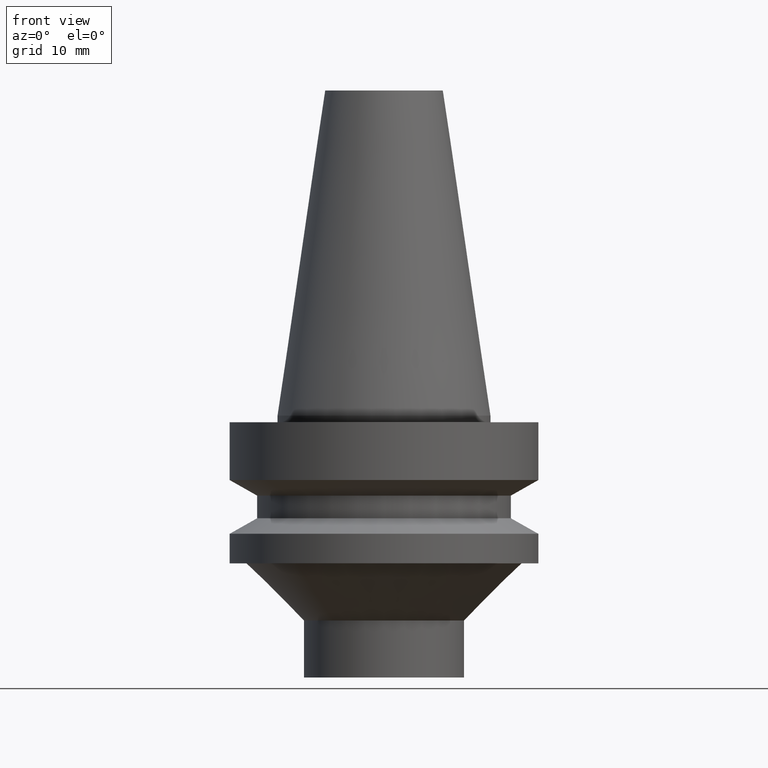
[diagram: clean part render]
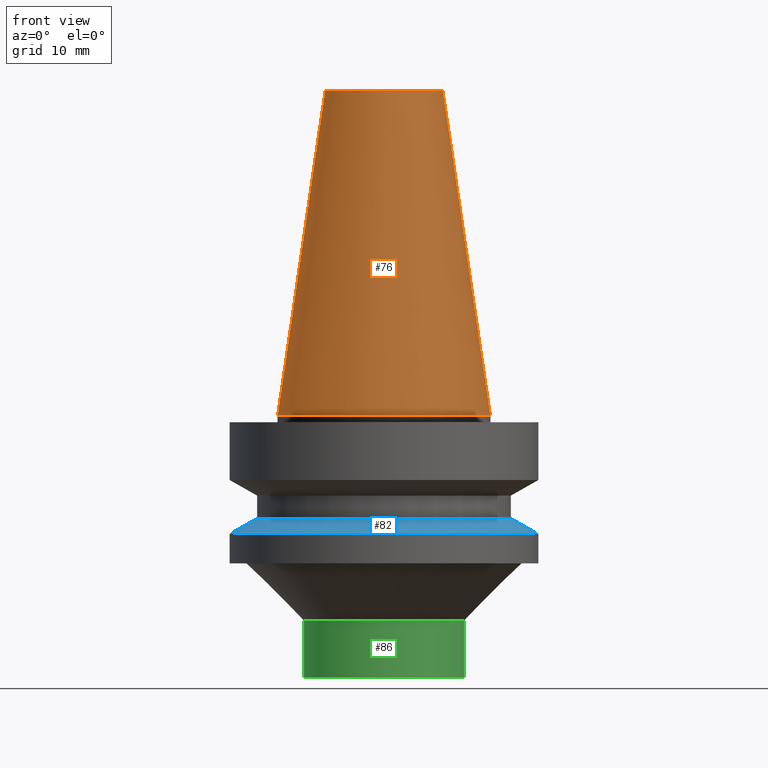
[diagram: same view with three faces highlighted in distinct colors, each labeled with its STEP entity id]
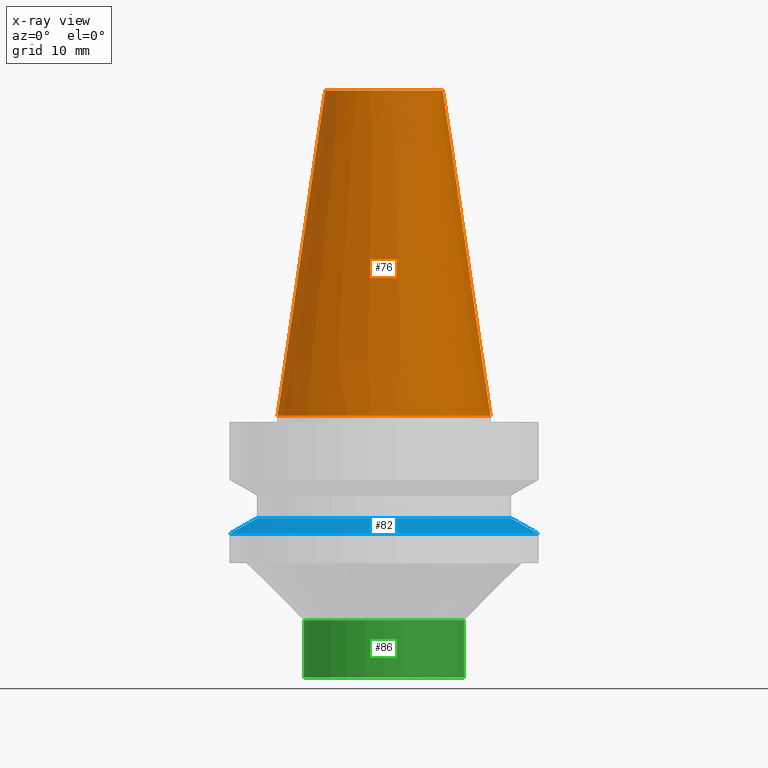
[diagram: x-ray of the same camera — body ghosted, the three highlighted faces saturated]
A machine part, front view with three faces highlighted in distinct colors.
The next image is the same camera in x-ray (body ghosted, the three faces saturated) — at least one of them is partly hidden behind the body in this view.
Their STEP definitions:

[orange] entity #76 — the highlighted conical surface has half-angle 8.297 deg.
#76=ADVANCED_FACE('',(#91,#92),#93,.T.);
#91=FACE_BOUND('',#128,.T.);
#92=FACE_BOUND('',#129,.T.);
#93=CONICAL_SURFACE('',#130,12.3457500009933,0.14481587001362);
#128=EDGE_LOOP('',(#167));
#129=EDGE_LOOP('',(#168));
#130=AXIS2_PLACEMENT_3D('',#169,#170,#171);
#167=ORIENTED_EDGE('',*,*,#227,.F.);
#168=ORIENTED_EDGE('',*,*,#226,.T.);
#169=CARTESIAN_POINT('',(-1.4818226269683E-015,-2.96364525393659E-015,24.2));
#170=DIRECTION('',(6.12323399573677E-017,1.22464679914765E-016,-1.0));
#171=DIRECTION('',(-1.23259516440785E-032,1.0,1.22464679914765E-016));
#226=EDGE_CURVE('',#238,#238,#239,.T.);
#227=EDGE_CURVE('',#240,#240,#241,.T.);
#238=VERTEX_POINT('',#262);
#239=CIRCLE('',#263,8.81650000198667);
#240=VERTEX_POINT('',#264);
#241=CIRCLE('',#265,15.875);
#262=CARTESIAN_POINT('',(-2.96364525393659E-015,8.81650000198667,48.4));
#263=AXIS2_PLACEMENT_3D('',#286,#287,#288);
#264=CARTESIAN_POINT('',(-1.95674482349743E-031,15.875,1.94412679364642E-015));
#265=AXIS2_PLACEMENT_3D('',#289,#290,#291);
#286=CARTESIAN_POINT('',(-2.96364525393659E-015,-5.92729050787319E-015,48.4));
#287=DIRECTION('',(6.12323399573677E-017,1.22464679914764E-016,-1.0));
#288=DIRECTION('',(-1.2325951644079E-032,1.0,1.22464679914764E-016));
#289=CARTESIAN_POINT('',(0.0,0.0,0.0));
#290=DIRECTION('',(6.12323399573677E-017,1.22464679914714E-016,-1.0));
#291=DIRECTION('',(-1.23259516440783E-032,1.0,1.22464679914714E-016));

[blue] entity #82 — the highlighted conical surface has half-angle 60 deg.
#82=ADVANCED_FACE('',(#109,#110),#111,.T.);
#109=FACE_BOUND('',#146,.T.);
#110=FACE_BOUND('',#147,.T.);
#111=CONICAL_SURFACE('',#148,21.0,1.04719755058882);
#146=EDGE_LOOP('',(#197));
#147=EDGE_LOOP('',(#198));
#148=AXIS2_PLACEMENT_3D('',#199,#200,#201);
#197=ORIENTED_EDGE('',*,*,#233,.F.);
#198=ORIENTED_EDGE('',*,*,#232,.T.);
#199=CARTESIAN_POINT('',(1.00698416723543E-015,2.01396833447087E-015,-16.44529946));
#200=DIRECTION('',(6.12323399573677E-017,1.2246467991477E-016,-1.0));
#201=DIRECTION('',(-1.23259516440783E-032,1.0,1.2246467991477E-016));
#232=EDGE_CURVE('',#250,#250,#251,.T.);
#233=EDGE_CURVE('',#252,#252,#253,.T.);
#250=VERTEX_POINT('',#274);
#251=CIRCLE('',#275,19.0);
#252=VERTEX_POINT('',#276);
#253=CIRCLE('',#277,23.0);
#274=CARTESIAN_POINT('',(9.36279151221199E-016,19.0,-15.29059892));
#275=AXIS2_PLACEMENT_3D('',#304,#305,#306);
#276=CARTESIAN_POINT('',(1.07768918324967E-015,23.0,-17.6));
#277=AXIS2_PLACEMENT_3D('',#307,#308,#309);
#304=CARTESIAN_POINT('',(9.36279151221199E-016,1.8725583024424E-015,-15.29059892));
#305=DIRECTION('',(6.12323399573677E-017,1.2246467991475E-016,-1.0));
#306=DIRECTION('',(-1.23259516440783E-032,1.0,1.2246467991475E-016));
#307=CARTESIAN_POINT('',(1.07768918324967E-015,2.15537836649934E-015,-17.6));
#308=DIRECTION('',(6.12323399573677E-017,1.22464679914716E-016,-1.0));
#309=DIRECTION('',(-1.23259516440783E-032,1.0,1.22464679914716E-016));

[green] entity #86 — the highlighted cylindrical surface (bore or boss wall) has radius 12 mm, axis along (-0, -0, 1).
#86=ADVANCED_FACE('',(#121,#122),#123,.T.);
#121=FACE_BOUND('',#158,.T.);
#122=FACE_BOUND('',#159,.T.);
#123=CYLINDRICAL_SURFACE('',#160,12.0);
#158=EDGE_LOOP('',(#217));
#159=EDGE_LOOP('',(#218));
#160=AXIS2_PLACEMENT_3D('',#219,#220,#221);
#217=ORIENTED_EDGE('',*,*,#237,.F.);
#218=ORIENTED_EDGE('',*,*,#236,.T.);
#219=CARTESIAN_POINT('',(2.12782381351853E-015,4.25564762703705E-015,-34.75));
#220=DIRECTION('',(-6.12323399573677E-017,-1.2246467991476E-016,1.0));
#221=DIRECTION('',(-1.23259516440783E-032,1.0,1.2246467991476E-016));
#236=EDGE_CURVE('',#258,#258,#259,.T.);
#237=EDGE_CURVE('',#260,#260,#261,.T.);
#258=VERTEX_POINT('',#282);
#259=CIRCLE('',#283,12.0);
#260=VERTEX_POINT('',#284);
#261=CIRCLE('',#285,12.0);
#282=CARTESIAN_POINT('',(1.86758636869971E-015,12.0,-30.5));
#283=AXIS2_PLACEMENT_3D('',#316,#317,#318);
#284=CARTESIAN_POINT('',(2.38806125833734E-015,12.0,-39.0));
#285=AXIS2_PLACEMENT_3D('',#319,#320,#321);
#316=CARTESIAN_POINT('',(1.86758636869971E-015,3.73517273739943E-015,-30.5));
#317=DIRECTION('',(6.12323399573677E-017,1.2246467991476E-016,-1.0));
#318=DIRECTION('',(-1.23259516440783E-032,1.0,1.2246467991476E-016));
#319=CARTESIAN_POINT('',(2.38806125833734E-015,4.77612251667468E-015,-39.0));
#320=DIRECTION('',(6.12323399573677E-017,1.2246467991476E-016,-1.0));
#321=DIRECTION('',(-1.23259516440783E-032,1.0,1.2246467991476E-016));